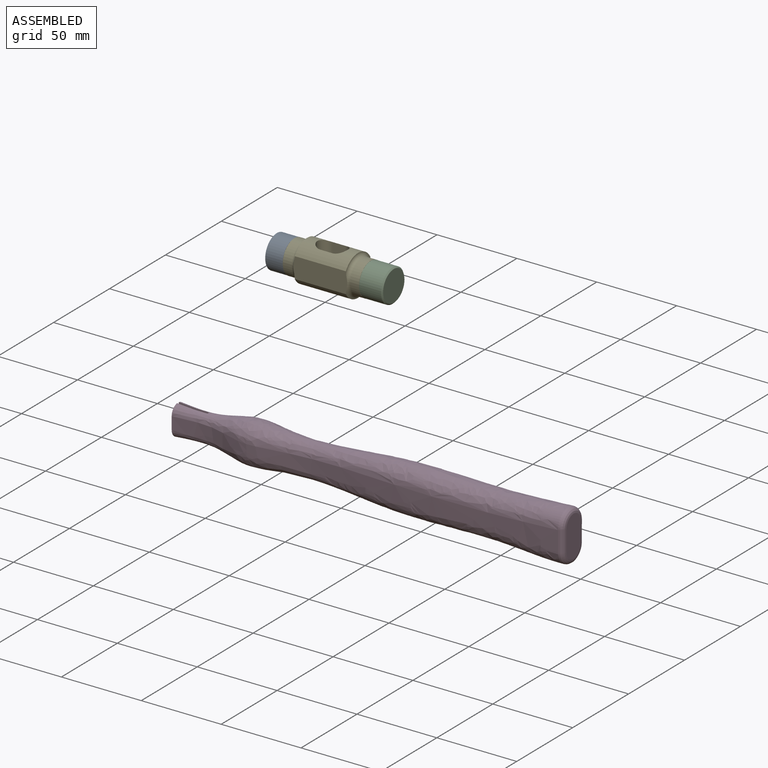
[diagram: assembled view]
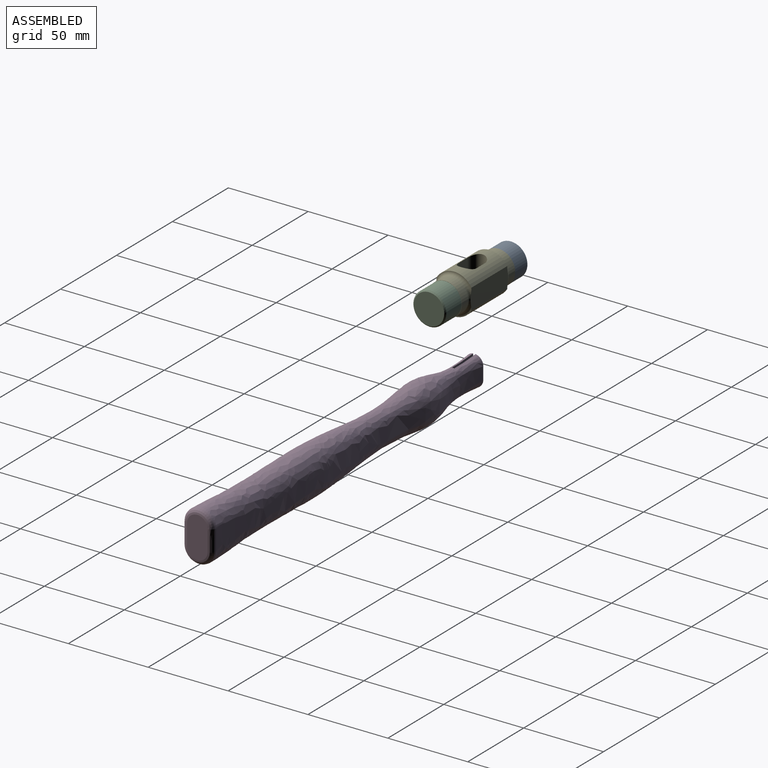
[diagram: assembled view, second angle]
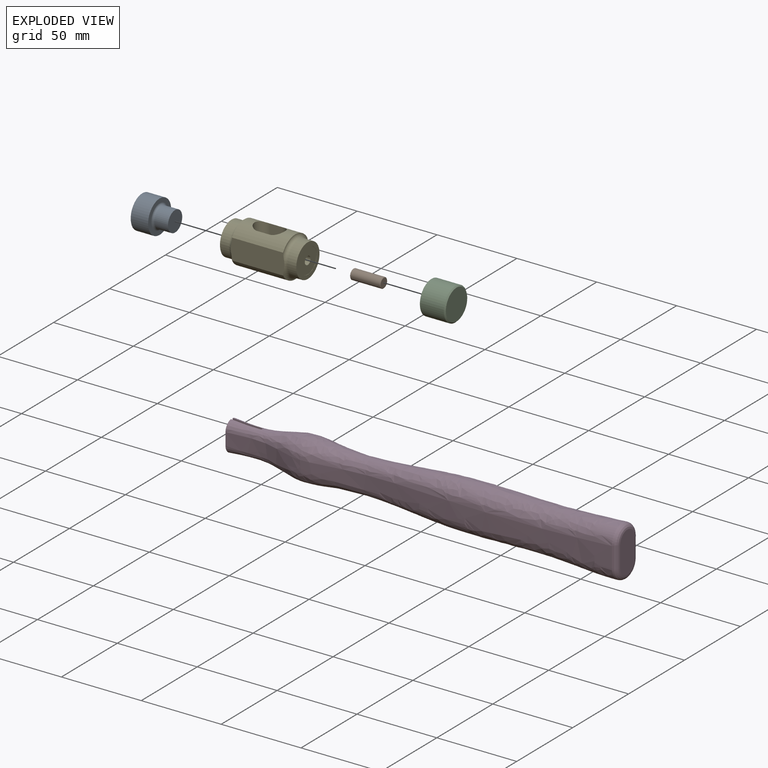
[diagram: exploded view]
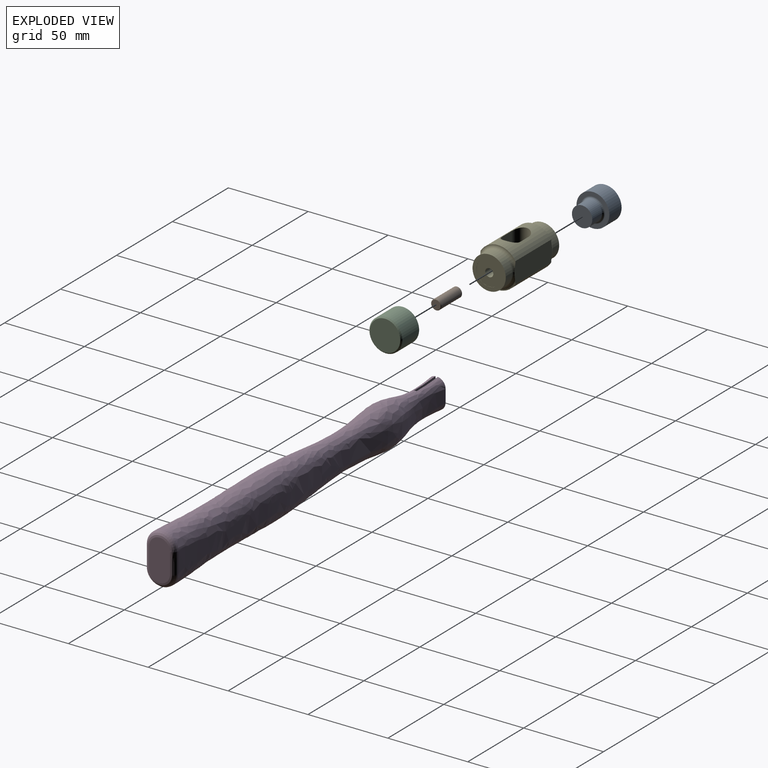
[diagram: exploded view, second angle]
ASSEMBLY  parts=5 mates=3
PART A: 6 faces, bbox 22.2x20.6x20.6 mm
  f0: torus R=7.65mm, axis (1,0,0), area 85.7mm2, adj f1,f5
  f1: plane 20.62x20.62mm, normal (1,0,0), area 150.5mm2, adj f0,f2
  f2: cylinder r=10.31mm len=20.62mm, axis (1,0,0), area 707.7mm2, adj f1,f3
  f3: sphere r=33.38mm, area 342.5mm2, adj f2
  f4: plane 12.75x12.75mm, normal (1,0,0), area 127.7mm2, adj f5
  f5: cylinder r=6.38mm len=12.75mm, axis (1,0,0), area 335.8mm2, adj f0,f4
PART B: 5 faces, bbox 19.1x6.4x6.4 mm
  f0: cylinder r=3.17mm len=18.54mm, axis (-1,0,0), area 369.9mm2, adj f3,f4
  f1: plane 5.84x5.84mm, normal (1,0,0), area 26.8mm2, adj f4
  f2: plane 5.84x5.84mm, normal (-1,0,0), area 26.8mm2, adj f3
  f3: cone r=3.17mm half-angle=45deg, axis (1,0,0), area 6.9mm2, adj f0,f2
  f4: cone r=2.92mm half-angle=45deg, axis (-1,0,0), area 6.9mm2, adj f0,f1
PART C: 6 faces, bbox 15.7x20.6x20.6 mm
  f0: cylinder r=10.31mm len=20.62mm, axis (-1,0,0), area 971mm2, adj f1,f3
  f1: plane 20.62x20.62mm, normal (-1,0,0), area 313.6mm2, adj f0,f4
  f2: plane 19.1x19.1mm, normal (1,0,0), area 286.5mm2, adj f3
  f3: cone r=10.31mm half-angle=45deg, axis (-1,0,0), area 67.2mm2, adj f0,f2
  f4: cylinder r=2.55mm len=12.7mm, axis (-1,0,0), area 203.7mm2, adj f1,f5
  f5: cone r=0mm half-angle=59deg, axis (-1,0,0), area 23.9mm2, adj f4
PART D: 8 faces, bbox 247.8x20.3x31.9 mm
  f0: plane 18.98x4.99mm, normal (-1,0,0), area 77.9mm2, adj f3,f5
  f1: plane 18.98x4.99mm, normal (-1,0,0), area 77.9mm2, adj f3,f6
  f2: plane 25.66x12.95mm, normal (1,0,0), area 296.3mm2, adj f4
  f3: bspline ~244.7x31.78mm, area 17111.8mm2, adj f0,f1,f4,f5,f6,f7
  f4: bspline ~31.69x19.05mm, area 376.1mm2, adj f2,f3
  f5: plane 19.05x18.82mm, normal (0,-1,0), area 335.8mm2, adj f0,f3,f7
  f6: plane 19.05x18.82mm, normal (0,1,0), area 335.8mm2, adj f1,f3,f7
  f7: plane 17.27x1.52mm, normal (-1,0,0), area 26.3mm2, adj f3,f5,f6
PART E: 20 faces, bbox 47.8x31x31 mm
  f0: torus R=12.7mm, axis (-1,0,0), area 219.7mm2, adj f1,f2,f7,f8,f9
  f1: cylinder r=12.7mm len=32mm, axis (-1,0,0), area 652mm2, adj f0,f3,f8,f9,f10,f11,f12,f13
  f2: cylinder r=12.7mm len=32mm, axis (-1,0,0), area 652mm2, adj f0,f3,f8,f9,f10,f11,f12,f13
  f3: torus R=12.7mm, axis (-1,0,0), area 219.7mm2, adj f1,f2,f4,f8,f9
  f4: cylinder r=10.41mm len=20.83mm, axis (-1,0,0), area 365.6mm2, adj f3,f5
  f5: plane 20.83x20.83mm, normal (-1,0,0), area 214mm2, adj f4,f18
  f6: plane 20.83x20.83mm, normal (1,0,0), area 145.9mm2, adj f7,f14
  f7: cylinder r=10.41mm len=20.83mm, axis (-1,0,0), area 365.6mm2, adj f0,f6
  f8: plane 33.71x12.97mm, normal (0,-1,0), area 425.7mm2, adj f0,f1,f2,f3
  f9: plane 33.71x12.97mm, normal (0,1,0), area 425.7mm2, adj f0,f1,f2,f3
  f10: plane 22.83x7.8mm, normal (0,1,0), area 178.1mm2, adj f1,f2,f11,f13
  f11: cylinder r=5.56mm len=25.4mm, axis (0,0,1), area 421.8mm2, adj f1,f2,f10,f12
  f12: plane 22.83x7.8mm, normal (0,-1,0), area 178.1mm2, adj f1,f2,f11,f13
  f13: cylinder r=5.56mm len=25.4mm, axis (0,0,1), area 421.8mm2, adj f1,f2,f10,f12
  f14: cylinder r=7.87mm len=15.75mm, axis (1,0,0), area 6.3mm2, adj f6,f15
  f15: plane 15.75x15.75mm, normal (1,0,0), area 174.3mm2, adj f14,f16
  f16: cylinder r=2.55mm len=12.7mm, axis (1,0,0), area 203.7mm2, adj f15,f17
  f17: cone r=0mm half-angle=59deg, axis (1,0,0), area 23.9mm2, adj f16
  f18: cylinder r=6.35mm len=12.7mm, axis (-1,0,0), area 506.7mm2, adj f5,f19
  f19: plane 12.7x12.7mm, normal (-1,0,0), area 126.7mm2, adj f18
PLACE A t=(-204.36,-100.46,-15.62)mm
PLACE B rot(axis=(0,1,0),180deg) t=(-167.42,-100.46,-15.62)mm
PLACE C t=(-167.42,-100.46,-15.62)mm
PLACE D t=(-255.68,-144.88,-101.9)mm
PLACE E t=(-190.02,-100.46,-15.62)mm
MATE cylindrical B.f0 <-> E.f0  axis (1,0,0) through (-167.42,-100.46,-15.62)mm
MATE cylindrical E.f0 <-> A.f0  axis (-1,0,0) through (-201.2,-100.46,-15.62)mm
MATE cylindrical B.f0 <-> C.f0  axis (1,0,0) through (-167.42,-100.46,-15.62)mm
